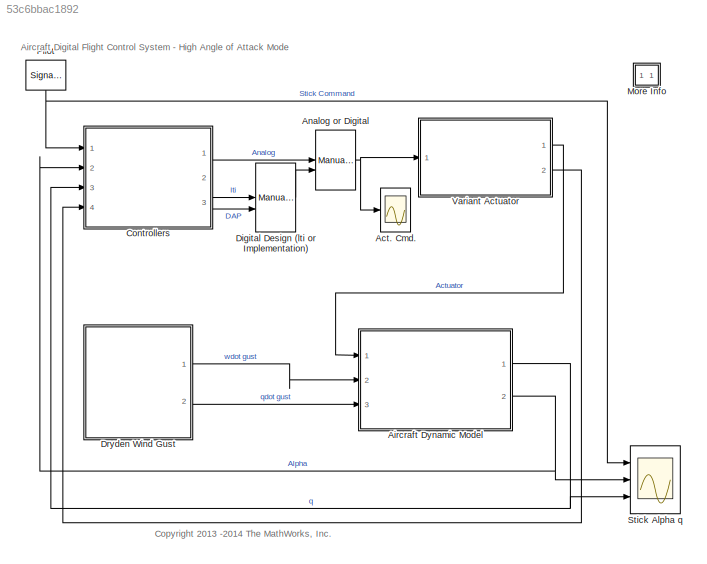
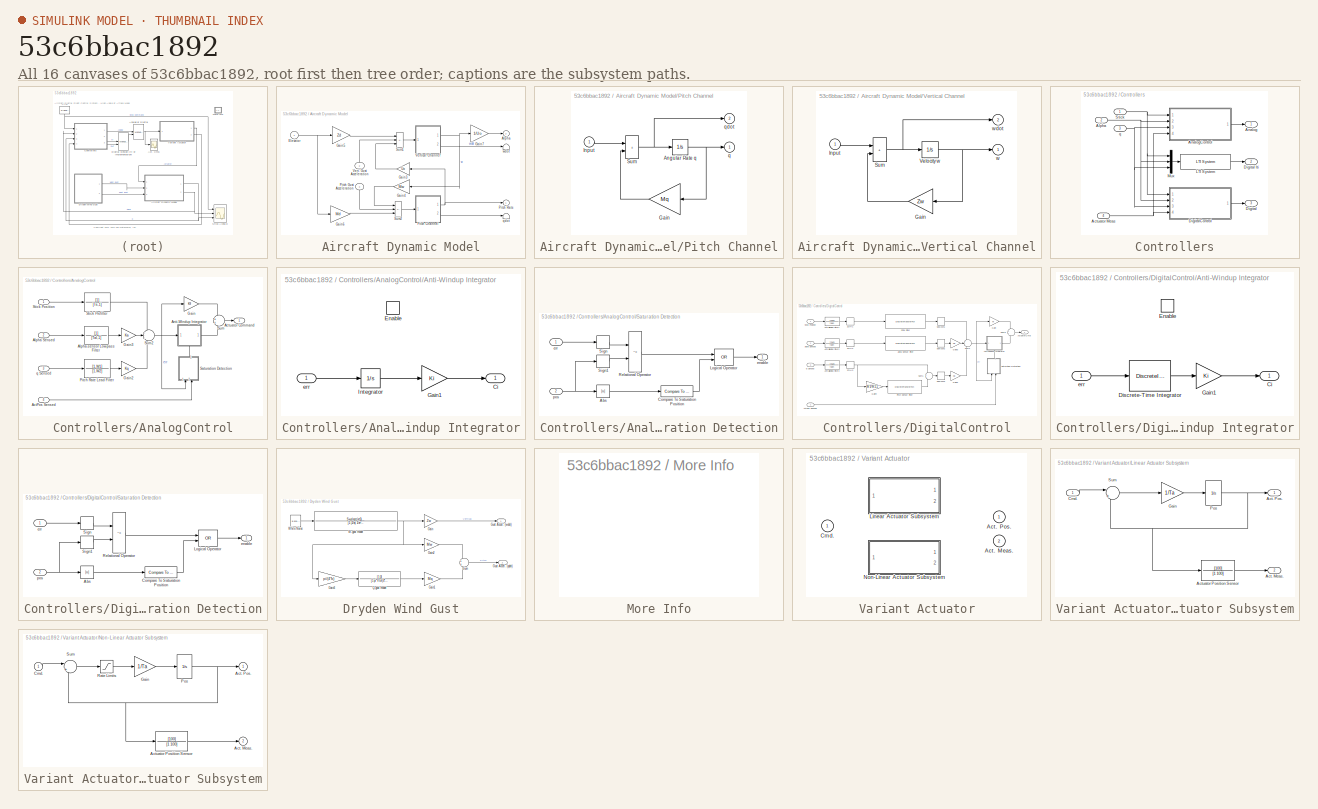
[diagram: thumbnail index - all 16 canvases of the model, root first then tree order]
MODEL slx_53c6bbac1892
KIND model
CONFIG AbsTol = 1e-6
CONFIG EnableMultiTasking = off
CONFIG FixedStep = .01
CONFIG MaxStep = auto
CONFIG MinStep = auto
CONFIG PreLoadFcn = load slexAircraftPitchControlData.mat\n
CONFIG RelTol = 1e-4
CONFIG SampleTimeConstraint = Unconstrained
CONFIG SolverName = ode45
CONFIG StartTime = 0.0
CONFIG StopTime = 60
BLOCK [Scope] Act. Cmd.
  Floating = off
  NumInputPorts = 1
  Ports = [1]
  ScopeSpecificationString = Simulink.scopes.TimeScopeBlockCfg('CurrentConfiguration', extmgr.ConfigurationSet(extmgr.Configuration('Core','General UI',true),extmgr.Configuration('Core','Source UI',true),extmgr.Configuration('Sources','WiredSimulink',true,'DataLoggingSaveFormat','Array','DataLoggingDecimation','1','DataLoggingDecimateData',true),extmgr.Configuration('Visuals','Time Domain',true,'TimeAxisLabels','All','Seriali...<+1665ch>
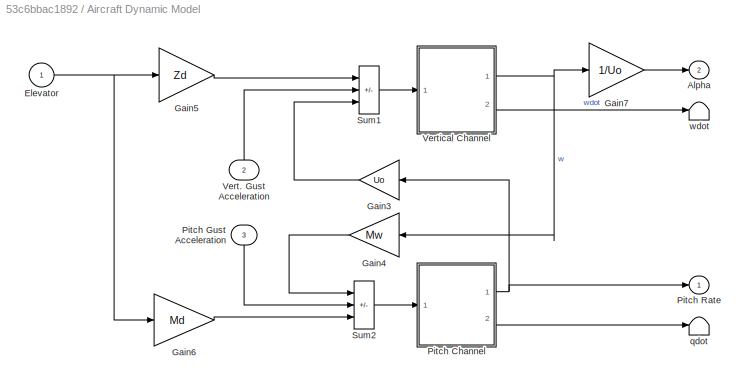
BLOCK [SubSystem] Aircraft Dynamic Model
  Ports = [3, 2]
  RequestExecContextInheritance = off
BLOCK [Outport] Aircraft Dynamic Model/Alpha
  NameLocation = top
  Port = 2
  VectorParamsAs1DForOutWhenUnconnected = off
BLOCK [Inport] Aircraft Dynamic Model/Elevator
BLOCK [Gain] Aircraft Dynamic Model/Gain3
  Gain = Uo
  OutDataTypeStr = Inherit: Same as input
  ParamDataTypeStr = Inherit: Same as input
  SaturateOnIntegerOverflow = on
BLOCK [Gain] Aircraft Dynamic Model/Gain4
  Gain = Mw
  OutDataTypeStr = Inherit: Same as input
  ParamDataTypeStr = Inherit: Same as input
  SaturateOnIntegerOverflow = on
BLOCK [Gain] Aircraft Dynamic Model/Gain5
  Gain = Zd
  OutDataTypeStr = Inherit: Same as input
  ParamDataTypeStr = Inherit: Same as input
  SaturateOnIntegerOverflow = on
BLOCK [Gain] Aircraft Dynamic Model/Gain6
  Gain = Md
  OutDataTypeStr = Inherit: Same as input
  ParamDataTypeStr = Inherit: Same as input
  SaturateOnIntegerOverflow = on
BLOCK [Gain] Aircraft Dynamic Model/Gain7
  Gain = 1/Uo
  OutDataTypeStr = Inherit: Same as input
  ParamDataTypeStr = Inherit: Same as input
  SaturateOnIntegerOverflow = on
BLOCK [SubSystem] Aircraft Dynamic Model/Pitch Channel
  Ports = [1, 2]
  RequestExecContextInheritance = off
BLOCK [Integrator] Aircraft Dynamic Model/Pitch Channel/Angular Rate q 
  Ports = [1, 1]
BLOCK [Gain] Aircraft Dynamic Model/Pitch Channel/Gain
  Gain = Mq
  OutDataTypeStr = Inherit: Same as input
  ParamDataTypeStr = Inherit: Same as input
  SaturateOnIntegerOverflow = on
BLOCK [Inport] Aircraft Dynamic Model/Pitch Channel/Input
BLOCK [Sum] Aircraft Dynamic Model/Pitch Channel/Sum
  IconShape = rectangular
  InputSameDT = on
  OutDataTypeStr = Inherit: Same as first input
  Ports = [2, 1]
  SaturateOnIntegerOverflow = on
BLOCK [Outport] Aircraft Dynamic Model/Pitch Channel/q
  VectorParamsAs1DForOutWhenUnconnected = off
BLOCK [Outport] Aircraft Dynamic Model/Pitch Channel/qdot
  Port = 2
  VectorParamsAs1DForOutWhenUnconnected = off
BLOCK [Inport] Aircraft Dynamic Model/Pitch Gust Acceleration
  NameLocation = left
  Port = 3
BLOCK [Outport] Aircraft Dynamic Model/Pitch Rate
  NameLocation = top
  VectorParamsAs1DForOutWhenUnconnected = off
BLOCK [Sum] Aircraft Dynamic Model/Sum1
  IconShape = rectangular
  InputSameDT = on
  Inputs = +-+
  OutDataTypeStr = Inherit: Same as first input
  Ports = [3, 1]
  SaturateOnIntegerOverflow = on
BLOCK [Sum] Aircraft Dynamic Model/Sum2
  IconShape = rectangular
  InputSameDT = on
  Inputs = +-+
  OutDataTypeStr = Inherit: Same as first input
  Ports = [3, 1]
  SaturateOnIntegerOverflow = on
BLOCK [Inport] Aircraft Dynamic Model/Vert. Gust Acceleration
  NameLocation = left
  Port = 2
BLOCK [SubSystem] Aircraft Dynamic Model/Vertical Channel
  Ports = [1, 2]
  RequestExecContextInheritance = off
BLOCK [Gain] Aircraft Dynamic Model/Vertical Channel/Gain
  Gain = Zw
  OutDataTypeStr = Inherit: Same as input
  ParamDataTypeStr = Inherit: Same as input
  SaturateOnIntegerOverflow = on
BLOCK [Inport] Aircraft Dynamic Model/Vertical Channel/Input
BLOCK [Sum] Aircraft Dynamic Model/Vertical Channel/Sum
  IconShape = rectangular
  InputSameDT = on
  OutDataTypeStr = Inherit: Same as first input
  Ports = [2, 1]
  SaturateOnIntegerOverflow = on
BLOCK [Integrator] Aircraft Dynamic Model/Vertical Channel/Velocity w
  Ports = [1, 1]
BLOCK [Outport] Aircraft Dynamic Model/Vertical Channel/w
  VectorParamsAs1DForOutWhenUnconnected = off
BLOCK [Outport] Aircraft Dynamic Model/Vertical Channel/wdot
  Port = 2
  VectorParamsAs1DForOutWhenUnconnected = off
BLOCK [Terminator] Aircraft Dynamic Model/qdot
BLOCK [Terminator] Aircraft Dynamic Model/wdot
BLOCK [ManualSwitch] Analog or Digital
BLOCK [SubSystem] Controllers
  Ports = [4, 3]
  RequestExecContextInheritance = off
BLOCK [Inport] Controllers/Actuator Meas
  Port = 4
BLOCK [Inport] Controllers/Alpha
  Port = 2
BLOCK [Outport] Controllers/Analog
  VectorParamsAs1DForOutWhenUnconnected = off
BLOCK [SubSystem] Controllers/AnalogControl
  NameLocation = top
  Ports = [4, 1]
  RequestExecContextInheritance = off
BLOCK [Inport] Controllers/AnalogControl/ActPos Sensed
  Port = 4
BLOCK [Outport] Controllers/AnalogControl/Actuator Command
  VectorParamsAs1DForOutWhenUnconnected = off
BLOCK [Inport] Controllers/AnalogControl/Alpha Sensed
  Port = 2
BLOCK [TransferFcn] Controllers/AnalogControl/Alpha-sensor Low-pass Filter
  Denominator = [Tal,1]
BLOCK [SubSystem] Controllers/AnalogControl/Anti-Windup Integrator
  NameLocation = top
  Ports = [1, 1, 1]
  RTWSystemCode = Inline
  RequestExecContextInheritance = off
  TreatAsAtomicUnit = on
BLOCK [Outport] Controllers/AnalogControl/Anti-Windup Integrator/Ci
  InitialOutput = 0
  VectorParamsAs1DForOutWhenUnconnected = off
BLOCK [EnablePort] Controllers/AnalogControl/Anti-Windup Integrator/Enable
  Ports = []
BLOCK [Gain] Controllers/AnalogControl/Anti-Windup Integrator/Gain1
  Gain = Ki
  OutDataTypeStr = Inherit: Same as input
  ParamDataTypeStr = Inherit: Same as input
  SaturateOnIntegerOverflow = on
BLOCK [Integrator] Controllers/AnalogControl/Anti-Windup Integrator/Integrator
  Ports = [1, 1]
BLOCK [Inport] Controllers/AnalogControl/Anti-Windup Integrator/err
BLOCK [Gain] Controllers/AnalogControl/Gain
  Gain = Kf
  OutDataTypeStr = Inherit: Same as input
  ParamDataTypeStr = Inherit: Same as input
  SaturateOnIntegerOverflow = on
BLOCK [Gain] Controllers/AnalogControl/Gain2
  Gain = Kq
  NameLocation = top
  OutDataTypeStr = Inherit: Same as input
  ParamDataTypeStr = Inherit: Same as input
  SaturateOnIntegerOverflow = on
BLOCK [Gain] Controllers/AnalogControl/Gain3
  Gain = Ka
  NameLocation = top
  OutDataTypeStr = Inherit: Same as input
  ParamDataTypeStr = Inherit: Same as input
  SaturateOnIntegerOverflow = on
BLOCK [TransferFcn] Controllers/AnalogControl/Pitch Rate Lead Filter
  Denominator = [1,W2]
  Numerator = [1,W1]
BLOCK [SubSystem] Controllers/AnalogControl/Saturation Detection
  NameLocation = right
  Ports = [2, 1]
  RequestExecContextInheritance = off
BLOCK [Abs] Controllers/AnalogControl/Saturation Detection/Abs
  SaturateOnIntegerOverflow = off
  ZeroCross = off
BLOCK [Reference] Controllers/AnalogControl/Saturation Detection/Compare To Saturation Position  REF=simulink/Logic and Bit
Operations/Compare
To Constant
  Ports = [1, 1]
  SourceBlock = simulink/Logic and Bit\nOperations/Compare\nTo Constant
  SourceProductBaseCode = SL
  SourceType = Compare To Constant
BLOCK [Logic] Controllers/AnalogControl/Saturation Detection/Logical Operator
  AllPortsSameDT = off
  Operator = OR
  OutDataTypeStr = boolean
  Ports = [2, 1]
BLOCK [RelationalOperator] Controllers/AnalogControl/Saturation Detection/Relational Operator
  InputSameDT = off
  Operator = ~=
  OutDataTypeStr = boolean
  Ports = [2, 1]
  ZeroCross = off
BLOCK [Signum] Controllers/AnalogControl/Saturation Detection/Sign
  ZeroCross = off
BLOCK [Signum] Controllers/AnalogControl/Saturation Detection/Sign1
  NameLocation = top
  ZeroCross = off
BLOCK [Outport] Controllers/AnalogControl/Saturation Detection/enable
  VectorParamsAs1DForOutWhenUnconnected = off
BLOCK [Inport] Controllers/AnalogControl/Saturation Detection/err
BLOCK [Inport] Controllers/AnalogControl/Saturation Detection/pos
  Port = 2
BLOCK [Inport] Controllers/AnalogControl/Stick Position
BLOCK [TransferFcn] Controllers/AnalogControl/Stick Prefilter
  Denominator = [Ts,1]
BLOCK [Sum] Controllers/AnalogControl/Sum
  InputSameDT = on
  Inputs = 2
  OutDataTypeStr = Inherit: Same as first input
  Ports = [2, 1]
  SaturateOnIntegerOverflow = on
BLOCK [Sum] Controllers/AnalogControl/Sum2
  InputSameDT = on
  Inputs = +--
  OutDataTypeStr = Inherit: Same as first input
  Ports = [3, 1]
  SaturateOnIntegerOverflow = on
BLOCK [Inport] Controllers/AnalogControl/q Sensed
  Port = 3
BLOCK [Outport] Controllers/Digital
  Port = 3
  VectorParamsAs1DForOutWhenUnconnected = off
BLOCK [Outport] Controllers/Digital lti
  Port = 2
  VectorParamsAs1DForOutWhenUnconnected = off
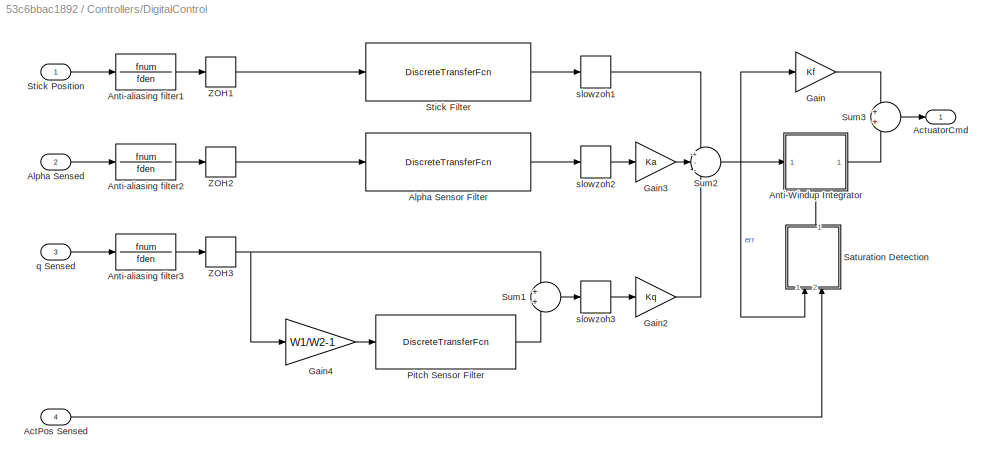
BLOCK [SubSystem] Controllers/DigitalControl
  Ports = [4, 1]
  RequestExecContextInheritance = off
BLOCK [Inport] Controllers/DigitalControl/ActPos Sensed
  Port = 4
BLOCK [Outport] Controllers/DigitalControl/ActuatorCmd
  VectorParamsAs1DForOutWhenUnconnected = off
BLOCK [Inport] Controllers/DigitalControl/Alpha Sensed
  Port = 2
BLOCK [DiscreteTransferFcn] Controllers/DigitalControl/Alpha Sensor Filter
  Denominator = [1 -exp(-deltat1/Tal)]
  InputPortMap = u0
  Numerator = [1-exp(-deltat1/Tal)]
  Ports = [1, 1]
  SampleTime = deltat1
BLOCK [SubSystem] Controllers/DigitalControl/Anti-Windup Integrator
  NameLocation = top
  Ports = [1, 1, 1]
  RTWSystemCode = Inline
  RequestExecContextInheritance = off
  TreatAsAtomicUnit = on
BLOCK [Outport] Controllers/DigitalControl/Anti-Windup Integrator/Ci
  InitialOutput = 0
  VectorParamsAs1DForOutWhenUnconnected = off
BLOCK [DiscreteIntegrator] Controllers/DigitalControl/Anti-Windup Integrator/Discrete-Time Integrator
  ICPrevOutput = DiscIntNeverNeededParam
  ICPrevScaledInput = DiscIntNeverNeededParam
  IntegratorMethod = Integration: Trapezoidal
  Ports = [1, 1]
  SampleTime = deltat
BLOCK [EnablePort] Controllers/DigitalControl/Anti-Windup Integrator/Enable
  Ports = []
BLOCK [Gain] Controllers/DigitalControl/Anti-Windup Integrator/Gain1
  Gain = Ki
  OutDataTypeStr = Inherit: Same as input
  ParamDataTypeStr = Inherit: Same as input
  SaturateOnIntegerOverflow = on
BLOCK [Inport] Controllers/DigitalControl/Anti-Windup Integrator/err
BLOCK [TransferFcn] Controllers/DigitalControl/Anti-aliasing filter1
  AttributesFormatString = %<Description>
  Denominator = fden
  Numerator = fnum
BLOCK [TransferFcn] Controllers/DigitalControl/Anti-aliasing filter2
  AttributesFormatString = %<Description>
  Denominator = fden
  Numerator = fnum
BLOCK [TransferFcn] Controllers/DigitalControl/Anti-aliasing filter3
  AttributesFormatString = %<Description>
  Denominator = fden
  Numerator = fnum
BLOCK [Gain] Controllers/DigitalControl/Gain
  Gain = Kf
  OutDataTypeStr = Inherit: Same as input
  ParamDataTypeStr = Inherit: Same as input
  SaturateOnIntegerOverflow = on
BLOCK [Gain] Controllers/DigitalControl/Gain2
  Gain = Kq
  NameLocation = top
  OutDataTypeStr = Inherit: Same as input
  ParamDataTypeStr = Inherit: Same as input
  SaturateOnIntegerOverflow = on
BLOCK [Gain] Controllers/DigitalControl/Gain3
  Gain = Ka
  NameLocation = top
  OutDataTypeStr = Inherit: Same as input
  ParamDataTypeStr = Inherit: Same as input
  SaturateOnIntegerOverflow = on
BLOCK [Gain] Controllers/DigitalControl/Gain4
  Gain = W1/W2-1
  NameLocation = top
  OutDataTypeStr = Inherit: Same as input
  ParamDataTypeStr = Inherit: Same as input
  SaturateOnIntegerOverflow = on
BLOCK [DiscreteTransferFcn] Controllers/DigitalControl/Pitch Sensor Filter
  Denominator = [1 -exp(-W2*deltat1)]
  InputPortMap = u0
  Numerator = [1-exp(-W2*deltat1)]
  Ports = [1, 1]
  SampleTime = deltat1
BLOCK [SubSystem] Controllers/DigitalControl/Saturation Detection
  NameLocation = right
  Ports = [2, 1]
  RequestExecContextInheritance = off
BLOCK [Abs] Controllers/DigitalControl/Saturation Detection/Abs
  SaturateOnIntegerOverflow = off
  ZeroCross = off
BLOCK [Reference] Controllers/DigitalControl/Saturation Detection/Compare To Saturation Position  REF=simulink/Logic and Bit
Operations/Compare
To Constant
  Ports = [1, 1]
  SourceBlock = simulink/Logic and Bit\nOperations/Compare\nTo Constant
  SourceProductBaseCode = SL
  SourceType = Compare To Constant
BLOCK [Logic] Controllers/DigitalControl/Saturation Detection/Logical Operator
  AllPortsSameDT = off
  Operator = OR
  OutDataTypeStr = boolean
  Ports = [2, 1]
BLOCK [RelationalOperator] Controllers/DigitalControl/Saturation Detection/Relational Operator
  InputSameDT = off
  Operator = ~=
  OutDataTypeStr = boolean
  Ports = [2, 1]
  ZeroCross = off
BLOCK [Signum] Controllers/DigitalControl/Saturation Detection/Sign
  ZeroCross = off
BLOCK [Signum] Controllers/DigitalControl/Saturation Detection/Sign1
  NameLocation = top
  ZeroCross = off
BLOCK [Outport] Controllers/DigitalControl/Saturation Detection/enable
  VectorParamsAs1DForOutWhenUnconnected = off
BLOCK [Inport] Controllers/DigitalControl/Saturation Detection/err
BLOCK [Inport] Controllers/DigitalControl/Saturation Detection/pos
  Port = 2
BLOCK [DiscreteTransferFcn] Controllers/DigitalControl/Stick Filter
  Denominator = [1 -exp(-deltat1/Ts)]
  InputPortMap = u0
  Numerator = [1-exp(-deltat1/Ts)]
  Ports = [1, 1]
  SampleTime = deltat1
BLOCK [Inport] Controllers/DigitalControl/Stick Position
BLOCK [Sum] Controllers/DigitalControl/Sum1
  InputSameDT = on
  Inputs = 2
  OutDataTypeStr = Inherit: Same as first input
  Ports = [2, 1]
  SaturateOnIntegerOverflow = on
BLOCK [Sum] Controllers/DigitalControl/Sum2
  InputSameDT = on
  Inputs = +--
  OutDataTypeStr = Inherit: Same as first input
  Ports = [3, 1]
  SaturateOnIntegerOverflow = on
BLOCK [Sum] Controllers/DigitalControl/Sum3
  InputSameDT = on
  Inputs = 2
  OutDataTypeStr = Inherit: Same as first input
  Ports = [2, 1]
  SaturateOnIntegerOverflow = on
BLOCK [ZeroOrderHold] Controllers/DigitalControl/ZOH1
  SampleTime = deltat1
BLOCK [ZeroOrderHold] Controllers/DigitalControl/ZOH2
  SampleTime = deltat1
BLOCK [ZeroOrderHold] Controllers/DigitalControl/ZOH3
  SampleTime = deltat1
BLOCK [Inport] Controllers/DigitalControl/q Sensed
  Port = 3
BLOCK [ZeroOrderHold] Controllers/DigitalControl/slowzoh1
  SampleTime = deltat
BLOCK [ZeroOrderHold] Controllers/DigitalControl/slowzoh2
  SampleTime = deltat
BLOCK [ZeroOrderHold] Controllers/DigitalControl/slowzoh3
  SampleTime = deltat
BLOCK [Reference] Controllers/LTI System  REF=cstblocks/LTI System
  Ports = [1, 1]
  SourceBlock = cstblocks/LTI System
  SourceProductBaseCode = CT
  SourceType = LTI Block
BLOCK [Mux] Controllers/Mux
  DisplayOption = bar
  Inputs = 3
  Ports = [3, 1]
BLOCK [Inport] Controllers/Stick
  NameLocation = top
BLOCK [Inport] Controllers/q
  Port = 3
BLOCK [ManualSwitch] Digital Design (lti or Implementation)
  CurrentSetting = 0
BLOCK [SubSystem] Dryden Wind Gust
  Ports = [0, 2]
  RequestExecContextInheritance = off
BLOCK [Gain] Dryden Wind Gust/Gain
  Gain = Zw
  OutDataTypeStr = Inherit: Same as input
  ParamDataTypeStr = Inherit: Same as input
  SaturateOnIntegerOverflow = on
BLOCK [Gain] Dryden Wind Gust/Gain1
  Gain = Mq
  OutDataTypeStr = Inherit: Same as input
  ParamDataTypeStr = Inherit: Same as input
  SaturateOnIntegerOverflow = on
BLOCK [Gain] Dryden Wind Gust/Gain2
  Gain = Mw
  OutDataTypeStr = Inherit: Same as input
  ParamDataTypeStr = Inherit: Same as input
  SaturateOnIntegerOverflow = on
BLOCK [Gain] Dryden Wind Gust/Gain3
  Gain = pi/(4*b)
  OutDataTypeStr = Inherit: Same as input
  ParamDataTypeStr = Inherit: Same as input
  SaturateOnIntegerOverflow = on
BLOCK [Outport] Dryden Wind Gust/Gust Accel. (qdot)
  Port = 2
  VectorParamsAs1DForOutWhenUnconnected = off
BLOCK [Outport] Dryden Wind Gust/Gust Accel. (wdot)
  VectorParamsAs1DForOutWhenUnconnected = off
BLOCK [TransferFcn] Dryden Wind Gust/Q-gust model
  Denominator = [1 pi*Vto/(4*b)]
  Numerator = [1 0]
BLOCK [Sum] Dryden Wind Gust/Sum
  InputSameDT = on
  OutDataTypeStr = Inherit: Same as first input
  Ports = [2, 1]
  SaturateOnIntegerOverflow = on
BLOCK [TransferFcn] Dryden Wind Gust/W-gust model
  Denominator = [1 (2/a) 1/a^2]
  Numerator = Swg/sqrt(a^3)*[sqrt(3)*a,1]
BLOCK [Reference] Dryden Wind Gust/White Noise  REF=simulink/Sources/Band-Limited
White Noise
  Ports = [0, 1]
  SourceBlock = simulink/Sources/Band-Limited\nWhite Noise
  SourceProductBaseCode = SL
  SourceType = Band-Limited White Noise.
BLOCK [SubSystem] More Info
  OpenFcn = showExample('simulink_aerospace/DesigningAHighAngleOfAttackPitchModeControlExample')
  Ports = []
  RequestExecContextInheritance = off
BLOCK [SignalGenerator] Pilot
  Frequency = .1
  NameLocation = right
  Ports = [0, 1]
  WaveForm = square
BLOCK [Scope] Stick Alpha q
  Floating = off
  NameLocation = top
  NumInputPorts = 3
  Ports = [3]
  ScopeSpecificationString = Simulink.scopes.TimeScopeBlockCfg('CurrentConfiguration', extmgr.ConfigurationSet(extmgr.Configuration('Core','General UI',true),extmgr.Configuration('Core','Source UI',true),extmgr.Configuration('Sources','WiredSimulink',true,'DataLoggingSaveFormat','Array','DataLoggingDecimation','1','DataLoggingDecimateData',true),extmgr.Configuration('Visuals','Time Domain',true,'TimeAxisLabels','All','Seriali...<+3048ch>
BLOCK [SubSystem] Variant Actuator
  LabelModeActiveChoice = ActuatorType=='Linear'
  Ports = [1, 2]
  RequestExecContextInheritance = off
  Variant = on
  VariantControlMode = label
BLOCK [Outport] Variant Actuator/Act. Meas.
  Port = 2
  VectorParamsAs1DForOutWhenUnconnected = off
BLOCK [Outport] Variant Actuator/Act. Pos.
  VectorParamsAs1DForOutWhenUnconnected = off
BLOCK [Inport] Variant Actuator/Cmd.
BLOCK [SubSystem] Variant Actuator/Linear Actuator Subsystem
  Ports = [1, 2]
  RequestExecContextInheritance = off
  VariantControl = ActuatorType=='Linear'
BLOCK [Outport] Variant Actuator/Linear Actuator Subsystem/Act. Meas.
  InitialOutput = 0
  Port = 2
  VectorParamsAs1DForOutWhenUnconnected = off
BLOCK [Outport] Variant Actuator/Linear Actuator Subsystem/Act. Pos.
  InitialOutput = 0
  VectorParamsAs1DForOutWhenUnconnected = off
BLOCK [TransferFcn] Variant Actuator/Linear Actuator Subsystem/Actuator Position Sensor
  Denominator = [1 100]
  Numerator = [100]
BLOCK [Inport] Variant Actuator/Linear Actuator Subsystem/Cmd.
BLOCK [Gain] Variant Actuator/Linear Actuator Subsystem/Gain
  Gain = 1/Ta
  OutDataTypeStr = Inherit: Same as input
  ParamDataTypeStr = Inherit: Same as input
  SaturateOnIntegerOverflow = on
BLOCK [Integrator] Variant Actuator/Linear Actuator Subsystem/Pos
  LowerSaturationLimit = -pi*45/180
  Ports = [1, 1]
  UpperSaturationLimit = pi*45/180
BLOCK [Sum] Variant Actuator/Linear Actuator Subsystem/Sum
  InputSameDT = on
  Inputs = |+-
  OutDataTypeStr = Inherit: Same as first input
  Ports = [2, 1]
  SaturateOnIntegerOverflow = on
BLOCK [SubSystem] Variant Actuator/Non-Linear Actuator Subsystem
  Ports = [1, 2]
  RequestExecContextInheritance = off
  VariantControl = ActuatorType=='Non-Linear'
BLOCK [Outport] Variant Actuator/Non-Linear Actuator Subsystem/Act. Meas.
  InitialOutput = 0
  Port = 2
  VectorParamsAs1DForOutWhenUnconnected = off
BLOCK [Outport] Variant Actuator/Non-Linear Actuator Subsystem/Act. Pos.
  InitialOutput = 0
  VectorParamsAs1DForOutWhenUnconnected = off
BLOCK [TransferFcn] Variant Actuator/Non-Linear Actuator Subsystem/Actuator Position Sensor
  Denominator = [1 100]
  Numerator = [100]
BLOCK [Inport] Variant Actuator/Non-Linear Actuator Subsystem/Cmd.
BLOCK [Gain] Variant Actuator/Non-Linear Actuator Subsystem/Gain
  Gain = 1/Ta
  OutDataTypeStr = Inherit: Same as input
  ParamDataTypeStr = Inherit: Same as input
  SaturateOnIntegerOverflow = on
BLOCK [Integrator] Variant Actuator/Non-Linear Actuator Subsystem/Pos
  LimitOutput = on
  LowerSaturationLimit = -pi*45/180
  Ports = [1, 1]
  UpperSaturationLimit = pi*45/180
BLOCK [Saturate] Variant Actuator/Non-Linear Actuator Subsystem/Rate Limits
BLOCK [Sum] Variant Actuator/Non-Linear Actuator Subsystem/Sum
  InputSameDT = on
  Inputs = |+-
  OutDataTypeStr = Inherit: Same as first input
  Ports = [2, 1]
  SaturateOnIntegerOverflow = on
ANNOTATION (root): Aircraft Digital Flight Control System - High Angle of Attack Mode
ANNOTATION (root): <copyright redacted>
NET Aircraft Dynamic Model/Elevator:1 -> Aircraft Dynamic Model/Gain5:1, Aircraft Dynamic Model/Gain6:1
LINE Aircraft Dynamic Model/Gain3:1 -> Aircraft Dynamic Model/Sum1:3
LINE Aircraft Dynamic Model/Gain4:1 -> Aircraft Dynamic Model/Sum2:1
LINE Aircraft Dynamic Model/Gain5:1 -> Aircraft Dynamic Model/Sum1:1
LINE Aircraft Dynamic Model/Gain6:1 -> Aircraft Dynamic Model/Sum2:3
LINE Aircraft Dynamic Model/Gain7:1 -> Aircraft Dynamic Model/Alpha:1
NET Aircraft Dynamic Model/Pitch Channel/Angular Rate q :1 -> Aircraft Dynamic Model/Pitch Channel/Gain:1, Aircraft Dynamic Model/Pitch Channel/q:1
LINE Aircraft Dynamic Model/Pitch Channel/Gain:1 -> Aircraft Dynamic Model/Pitch Channel/Sum:2
LINE Aircraft Dynamic Model/Pitch Channel/Input:1 -> Aircraft Dynamic Model/Pitch Channel/Sum:1
NET Aircraft Dynamic Model/Pitch Channel/Sum:1 -> Aircraft Dynamic Model/Pitch Channel/Angular Rate q :1, Aircraft Dynamic Model/Pitch Channel/qdot:1
NET Aircraft Dynamic Model/Pitch Channel:1 -> Aircraft Dynamic Model/Gain3:1, Aircraft Dynamic Model/Pitch Rate:1
LINE Aircraft Dynamic Model/Pitch Channel:2 -> Aircraft Dynamic Model/qdot:1
LINE Aircraft Dynamic Model/Pitch Gust Acceleration:1 -> Aircraft Dynamic Model/Sum2:2
LINE Aircraft Dynamic Model/Sum1:1 -> Aircraft Dynamic Model/Vertical Channel:1
LINE Aircraft Dynamic Model/Sum2:1 -> Aircraft Dynamic Model/Pitch Channel:1
LINE Aircraft Dynamic Model/Vert. Gust Acceleration:1 -> Aircraft Dynamic Model/Sum1:2
LINE Aircraft Dynamic Model/Vertical Channel/Gain:1 -> Aircraft Dynamic Model/Vertical Channel/Sum:2
LINE Aircraft Dynamic Model/Vertical Channel/Input:1 -> Aircraft Dynamic Model/Vertical Channel/Sum:1
NET Aircraft Dynamic Model/Vertical Channel/Sum:1 -> Aircraft Dynamic Model/Vertical Channel/Velocity w:1, Aircraft Dynamic Model/Vertical Channel/wdot:1
NET Aircraft Dynamic Model/Vertical Channel/Velocity w:1 -> Aircraft Dynamic Model/Vertical Channel/Gain:1, Aircraft Dynamic Model/Vertical Channel/w:1
NET Aircraft Dynamic Model/Vertical Channel:1 -> Aircraft Dynamic Model/Gain4:1, Aircraft Dynamic Model/Gain7:1
LINE Aircraft Dynamic Model/Vertical Channel:2 -> Aircraft Dynamic Model/wdot:1
NET Aircraft Dynamic Model:1 -> Controllers:3, Stick Alpha q:3
NET Aircraft Dynamic Model:2 -> Controllers:2, Stick Alpha q:2
NET Analog or Digital:1 -> Act. Cmd.:1, Variant Actuator:1
NET Controllers/Actuator Meas:1 -> Controllers/AnalogControl:4, Controllers/DigitalControl:4
NET Controllers/Alpha:1 -> Controllers/AnalogControl:2, Controllers/DigitalControl:2, Controllers/Mux:2
LINE Controllers/AnalogControl/ActPos Sensed:1 -> Controllers/AnalogControl/Saturation Detection:2
LINE Controllers/AnalogControl/Alpha Sensed:1 -> Controllers/AnalogControl/Alpha-sensor Low-pass Filter:1
LINE Controllers/AnalogControl/Alpha-sensor Low-pass Filter:1 -> Controllers/AnalogControl/Gain3:1
LINE Controllers/AnalogControl/Anti-Windup Integrator/Gain1:1 -> Controllers/AnalogControl/Anti-Windup Integrator/Ci:1
LINE Controllers/AnalogControl/Anti-Windup Integrator/Integrator:1 -> Controllers/AnalogControl/Anti-Windup Integrator/Gain1:1
LINE Controllers/AnalogControl/Anti-Windup Integrator/err:1 -> Controllers/AnalogControl/Anti-Windup Integrator/Integrator:1
LINE Controllers/AnalogControl/Anti-Windup Integrator:1 -> Controllers/AnalogControl/Sum:2
LINE Controllers/AnalogControl/Gain2:1 -> Controllers/AnalogControl/Sum2:3
LINE Controllers/AnalogControl/Gain3:1 -> Controllers/AnalogControl/Sum2:2
LINE Controllers/AnalogControl/Gain:1 -> Controllers/AnalogControl/Sum:1
LINE Controllers/AnalogControl/Pitch Rate Lead Filter:1 -> Controllers/AnalogControl/Gain2:1
LINE Controllers/AnalogControl/Saturation Detection/Abs:1 -> Controllers/AnalogControl/Saturation Detection/Compare To Saturation Position:1
LINE Controllers/AnalogControl/Saturation Detection/Compare To Saturation Position:1 -> Controllers/AnalogControl/Saturation Detection/Logical Operator:2
LINE Controllers/AnalogControl/Saturation Detection/Logical Operator:1 -> Controllers/AnalogControl/Saturation Detection/enable:1
LINE Controllers/AnalogControl/Saturation Detection/Relational Operator:1 -> Controllers/AnalogControl/Saturation Detection/Logical Operator:1
LINE Controllers/AnalogControl/Saturation Detection/Sign1:1 -> Controllers/AnalogControl/Saturation Detection/Relational Operator:2
LINE Controllers/AnalogControl/Saturation Detection/Sign:1 -> Controllers/AnalogControl/Saturation Detection/Relational Operator:1
LINE Controllers/AnalogControl/Saturation Detection/err:1 -> Controllers/AnalogControl/Saturation Detection/Sign:1
NET Controllers/AnalogControl/Saturation Detection/pos:1 -> Controllers/AnalogControl/Saturation Detection/Abs:1, Controllers/AnalogControl/Saturation Detection/Sign1:1
LINE Controllers/AnalogControl/Saturation Detection:1 -> Controllers/AnalogControl/Anti-Windup Integrator:enable
LINE Controllers/AnalogControl/Stick Position:1 -> Controllers/AnalogControl/Stick Prefilter:1
LINE Controllers/AnalogControl/Stick Prefilter:1 -> Controllers/AnalogControl/Sum2:1
NET Controllers/AnalogControl/Sum2:1 -> Controllers/AnalogControl/Anti-Windup Integrator:1, Controllers/AnalogControl/Gain:1, Controllers/AnalogControl/Saturation Detection:1
LINE Controllers/AnalogControl/Sum:1 -> Controllers/AnalogControl/Actuator Command:1
LINE Controllers/AnalogControl/q Sensed:1 -> Controllers/AnalogControl/Pitch Rate Lead Filter:1
LINE Controllers/AnalogControl:1 -> Controllers/Analog:1
LINE Controllers/DigitalControl/ActPos Sensed:1 -> Controllers/DigitalControl/Saturation Detection:2
LINE Controllers/DigitalControl/Alpha Sensed:1 -> Controllers/DigitalControl/Anti-aliasing filter2:1
LINE Controllers/DigitalControl/Alpha Sensor Filter:1 -> Controllers/DigitalControl/slowzoh2:1
LINE Controllers/DigitalControl/Anti-Windup Integrator/Discrete-Time Integrator:1 -> Controllers/DigitalControl/Anti-Windup Integrator/Gain1:1
LINE Controllers/DigitalControl/Anti-Windup Integrator/Gain1:1 -> Controllers/DigitalControl/Anti-Windup Integrator/Ci:1
LINE Controllers/DigitalControl/Anti-Windup Integrator/err:1 -> Controllers/DigitalControl/Anti-Windup Integrator/Discrete-Time Integrator:1
LINE Controllers/DigitalControl/Anti-Windup Integrator:1 -> Controllers/DigitalControl/Sum3:2
LINE Controllers/DigitalControl/Anti-aliasing filter1:1 -> Controllers/DigitalControl/ZOH1:1
LINE Controllers/DigitalControl/Anti-aliasing filter2:1 -> Controllers/DigitalControl/ZOH2:1
LINE Controllers/DigitalControl/Anti-aliasing filter3:1 -> Controllers/DigitalControl/ZOH3:1
LINE Controllers/DigitalControl/Gain2:1 -> Controllers/DigitalControl/Sum2:3
LINE Controllers/DigitalControl/Gain3:1 -> Controllers/DigitalControl/Sum2:2
LINE Controllers/DigitalControl/Gain4:1 -> Controllers/DigitalControl/Pitch Sensor Filter:1
LINE Controllers/DigitalControl/Gain:1 -> Controllers/DigitalControl/Sum3:1
LINE Controllers/DigitalControl/Pitch Sensor Filter:1 -> Controllers/DigitalControl/Sum1:2
LINE Controllers/DigitalControl/Saturation Detection/Abs:1 -> Controllers/DigitalControl/Saturation Detection/Compare To Saturation Position:1
LINE Controllers/DigitalControl/Saturation Detection/Compare To Saturation Position:1 -> Controllers/DigitalControl/Saturation Detection/Logical Operator:2
LINE Controllers/DigitalControl/Saturation Detection/Logical Operator:1 -> Controllers/DigitalControl/Saturation Detection/enable:1
LINE Controllers/DigitalControl/Saturation Detection/Relational Operator:1 -> Controllers/DigitalControl/Saturation Detection/Logical Operator:1
LINE Controllers/DigitalControl/Saturation Detection/Sign1:1 -> Controllers/DigitalControl/Saturation Detection/Relational Operator:2
LINE Controllers/DigitalControl/Saturation Detection/Sign:1 -> Controllers/DigitalControl/Saturation Detection/Relational Operator:1
LINE Controllers/DigitalControl/Saturation Detection/err:1 -> Controllers/DigitalControl/Saturation Detection/Sign:1
NET Controllers/DigitalControl/Saturation Detection/pos:1 -> Controllers/DigitalControl/Saturation Detection/Abs:1, Controllers/DigitalControl/Saturation Detection/Sign1:1
LINE Controllers/DigitalControl/Saturation Detection:1 -> Controllers/DigitalControl/Anti-Windup Integrator:enable
LINE Controllers/DigitalControl/Stick Filter:1 -> Controllers/DigitalControl/slowzoh1:1
LINE Controllers/DigitalControl/Stick Position:1 -> Controllers/DigitalControl/Anti-aliasing filter1:1
LINE Controllers/DigitalControl/Sum1:1 -> Controllers/DigitalControl/slowzoh3:1
NET Controllers/DigitalControl/Sum2:1 -> Controllers/DigitalControl/Anti-Windup Integrator:1, Controllers/DigitalControl/Gain:1, Controllers/DigitalControl/Saturation Detection:1
LINE Controllers/DigitalControl/Sum3:1 -> Controllers/DigitalControl/ActuatorCmd:1
LINE Controllers/DigitalControl/ZOH1:1 -> Controllers/DigitalControl/Stick Filter:1
LINE Controllers/DigitalControl/ZOH2:1 -> Controllers/DigitalControl/Alpha Sensor Filter:1
NET Controllers/DigitalControl/ZOH3:1 -> Controllers/DigitalControl/Gain4:1, Controllers/DigitalControl/Sum1:1
LINE Controllers/DigitalControl/q Sensed:1 -> Controllers/DigitalControl/Anti-aliasing filter3:1
LINE Controllers/DigitalControl/slowzoh1:1 -> Controllers/DigitalControl/Sum2:1
LINE Controllers/DigitalControl/slowzoh2:1 -> Controllers/DigitalControl/Gain3:1
LINE Controllers/DigitalControl/slowzoh3:1 -> Controllers/DigitalControl/Gain2:1
LINE Controllers/DigitalControl:1 -> Controllers/Digital:1
LINE Controllers/LTI System:1 -> Controllers/Digital lti:1
LINE Controllers/Mux:1 -> Controllers/LTI System:1
NET Controllers/Stick:1 -> Controllers/AnalogControl:1, Controllers/DigitalControl:1, Controllers/Mux:1
NET Controllers/q:1 -> Controllers/AnalogControl:3, Controllers/DigitalControl:3, Controllers/Mux:3
LINE Controllers:1 -> Analog or Digital:1
LINE Controllers:2 -> Digital Design (lti or Implementation):1
LINE Controllers:3 -> Digital Design (lti or Implementation):2
LINE Digital Design (lti or Implementation):1 -> Analog or Digital:2
LINE Dryden Wind Gust/Gain1:1 -> Dryden Wind Gust/Sum:2
LINE Dryden Wind Gust/Gain2:1 -> Dryden Wind Gust/Sum:1
LINE Dryden Wind Gust/Gain3:1 -> Dryden Wind Gust/Q-gust model:1
LINE Dryden Wind Gust/Gain:1 -> Dryden Wind Gust/Gust Accel. (wdot):1
LINE Dryden Wind Gust/Q-gust model:1 -> Dryden Wind Gust/Gain1:1
LINE Dryden Wind Gust/Sum:1 -> Dryden Wind Gust/Gust Accel. (qdot):1
NET Dryden Wind Gust/W-gust model:1 -> Dryden Wind Gust/Gain2:1, Dryden Wind Gust/Gain3:1, Dryden Wind Gust/Gain:1
LINE Dryden Wind Gust/White Noise:1 -> Dryden Wind Gust/W-gust model:1
LINE Dryden Wind Gust:1 -> Aircraft Dynamic Model:2
LINE Dryden Wind Gust:2 -> Aircraft Dynamic Model:3
NET Pilot:1 -> Controllers:1, Stick Alpha q:1
LINE Variant Actuator/Linear Actuator Subsystem/Actuator Position Sensor:1 -> Variant Actuator/Linear Actuator Subsystem/Act. Meas.:1
LINE Variant Actuator/Linear Actuator Subsystem/Cmd.:1 -> Variant Actuator/Linear Actuator Subsystem/Sum:1
LINE Variant Actuator/Linear Actuator Subsystem/Gain:1 -> Variant Actuator/Linear Actuator Subsystem/Pos:1
NET Variant Actuator/Linear Actuator Subsystem/Pos:1 -> Variant Actuator/Linear Actuator Subsystem/Act. Pos.:1, Variant Actuator/Linear Actuator Subsystem/Actuator Position Sensor:1, Variant Actuator/Linear Actuator Subsystem/Sum:2
LINE Variant Actuator/Linear Actuator Subsystem/Sum:1 -> Variant Actuator/Linear Actuator Subsystem/Gain:1
LINE Variant Actuator/Non-Linear Actuator Subsystem/Actuator Position Sensor:1 -> Variant Actuator/Non-Linear Actuator Subsystem/Act. Meas.:1
LINE Variant Actuator/Non-Linear Actuator Subsystem/Cmd.:1 -> Variant Actuator/Non-Linear Actuator Subsystem/Sum:1
LINE Variant Actuator/Non-Linear Actuator Subsystem/Gain:1 -> Variant Actuator/Non-Linear Actuator Subsystem/Pos:1
NET Variant Actuator/Non-Linear Actuator Subsystem/Pos:1 -> Variant Actuator/Non-Linear Actuator Subsystem/Act. Pos.:1, Variant Actuator/Non-Linear Actuator Subsystem/Actuator Position Sensor:1, Variant Actuator/Non-Linear Actuator Subsystem/Sum:2
LINE Variant Actuator/Non-Linear Actuator Subsystem/Rate Limits:1 -> Variant Actuator/Non-Linear Actuator Subsystem/Gain:1
LINE Variant Actuator/Non-Linear Actuator Subsystem/Sum:1 -> Variant Actuator/Non-Linear Actuator Subsystem/Rate Limits:1
LINE Variant Actuator:1 -> Aircraft Dynamic Model:1
LINE Variant Actuator:2 -> Controllers:4
note: NET lines group one-source signal fan-out (src -> all destinations, sorted); 1:1 wires keep LINE
